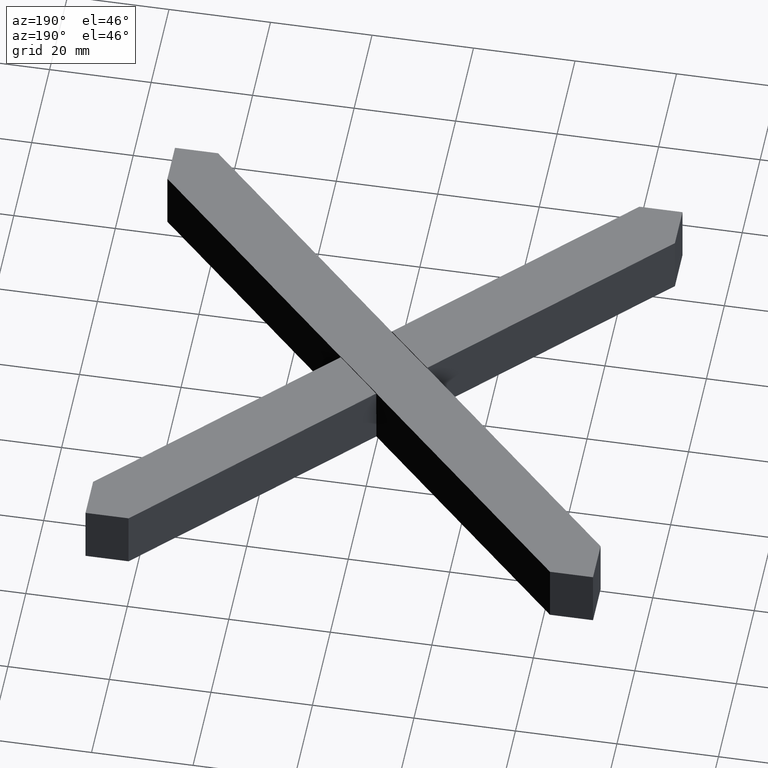
[diagram: clean part render]
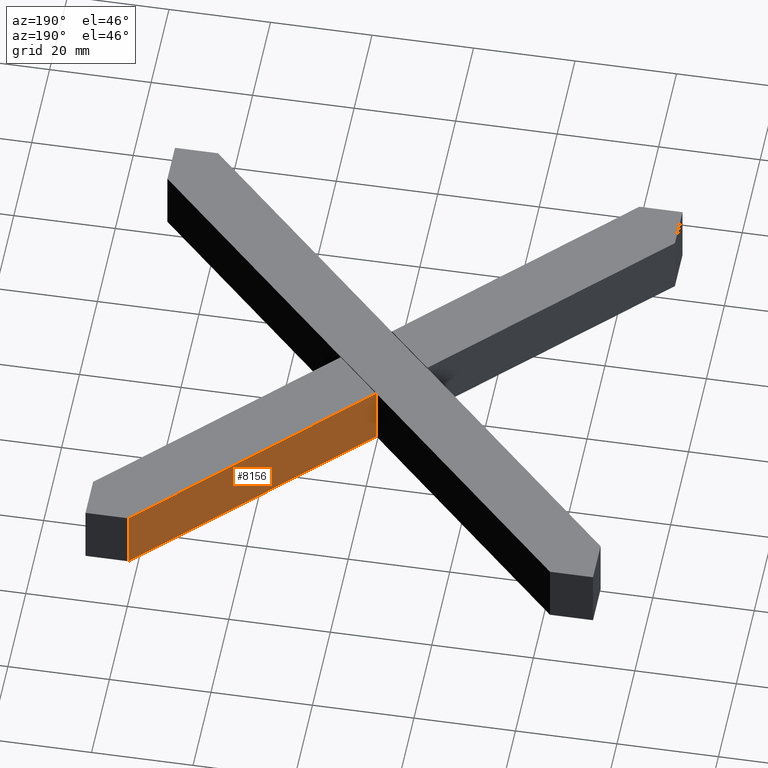
[diagram: same view with one face highlighted and labeled with its STEP entity id]
A machine part, auxiliary view. The second image highlights one B-rep face of the part: STEP entity #8156.
In plain terms, the highlighted planar face has unit normal (0.7071, -0.7071, 0).
Its self-contained STEP definition (entity closure, byte-faithful):
#525 = VERTEX_POINT ( 'NONE', #2630 ) ;
#770 = DIRECTION ( 'NONE',  ( -0.000000000000000000, -0.000000000000000000, -1.000000000000000000 ) ) ;
#1073 = ORIENTED_EDGE ( 'NONE', *, *, #7356, .T. ) ;
#1349 = VECTOR ( 'NONE', #12611, 999.9999999999998863 ) ;
#1473 = DIRECTION ( 'NONE',  ( -0.000000000000000000, -0.000000000000000000, -1.000000000000000000 ) ) ;
#1599 = CARTESIAN_POINT ( 'NONE',  ( -5.509374826798535559E-15, 8.485281374238564212, 0.000000000000000000 ) ) ;
#1704 = CARTESIAN_POINT ( 'NONE',  ( -5.509374826798535559E-15, 8.485281374238564212, 12.00000000000000000 ) ) ;
#2031 = EDGE_CURVE ( 'NONE', #525, #13691, #4371, .T. ) ;
#2630 = CARTESIAN_POINT ( 'NONE',  ( 41.51471862576141092, 50.00000000000000000, 12.00000000000000000 ) ) ;
#2880 = AXIS2_PLACEMENT_3D ( 'NONE', #1704, #7322, #11529 ) ;
#2896 = ORIENTED_EDGE ( 'NONE', *, *, #2031, .T. ) ;
#3033 = CARTESIAN_POINT ( 'NONE',  ( 0.03535533905932217169, 8.520636713297895071, 6.000000000000000000 ) ) ;
#3207 = EDGE_CURVE ( 'NONE', #10664, #9578, #8105, .T. ) ;
#3828 = CARTESIAN_POINT ( 'NONE',  ( 0.03535533905932217169, 8.520636713297895071, 6.000000000000000000 ) ) ;
#3904 = VECTOR ( 'NONE', #14065, 1000.000000000000000 ) ;
#4203 = LINE ( 'NONE', #9727, #6970 ) ;
#4371 = LINE ( 'NONE', #10187, #6281 ) ;
#4884 = DIRECTION ( 'NONE',  ( -0.7071067811865556774, -0.7071067811865392461, -0.000000000000000000 ) ) ;
#5172 = VECTOR ( 'NONE', #770, 1000.000000000000000 ) ;
#5182 = EDGE_LOOP ( 'NONE', ( #10307, #8103, #9387, #2896, #1073, #9221 ) ) ;
#5220 = EDGE_CURVE ( 'NONE', #9865, #7435, #10789, .T. ) ;
#6108 = PLANE ( 'NONE',  #2880 ) ;
#6281 = VECTOR ( 'NONE', #1473, 1000.000000000000000 ) ;
#6476 = LINE ( 'NONE', #8212, #12145 ) ;
#6970 = VECTOR ( 'NONE', #7584, 999.9999999999998863 ) ;
#7322 = DIRECTION ( 'NONE',  ( 0.7071067811865477948, -0.7071067811865473507, 0.000000000000000000 ) ) ;
#7349 = CARTESIAN_POINT ( 'NONE',  ( -5.509374826798535559E-15, 8.485281374238564212, 12.00000000000000000 ) ) ;
#7356 = EDGE_CURVE ( 'NONE', #13691, #9578, #10761, .T. ) ;
#7379 = EDGE_CURVE ( 'NONE', #9865, #10664, #6476, .T. ) ;
#7435 = VERTEX_POINT ( 'NONE', #8538 ) ;
#7506 = FACE_OUTER_BOUND ( 'NONE', #5182, .T. ) ;
#7584 = DIRECTION ( 'NONE',  ( -0.7071067811865473507, -0.7071067811865477948, -0.000000000000000000 ) ) ;
#8103 = ORIENTED_EDGE ( 'NONE', *, *, #5220, .T. ) ;
#8105 = LINE ( 'NONE', #7349, #5172 ) ;
#8156 = ADVANCED_FACE ( 'NONE', ( #7506 ), #6108, .F. ) ;
#8212 = CARTESIAN_POINT ( 'NONE',  ( -0.03535533905933258003, 8.449926035179242234, 6.000000000000000000 ) ) ;
#8277 = CARTESIAN_POINT ( 'NONE',  ( -5.017823179534475209E-15, 8.485281374238560659, 6.000000000000000000 ) ) ;
#8538 = CARTESIAN_POINT ( 'NONE',  ( 0.03535533905932217169, 8.520636713297895071, 12.00000000000000000 ) ) ;
#9221 = ORIENTED_EDGE ( 'NONE', *, *, #3207, .F. ) ;
#9387 = ORIENTED_EDGE ( 'NONE', *, *, #10382, .F. ) ;
#9578 = VERTEX_POINT ( 'NONE', #12013 ) ;
#9727 = CARTESIAN_POINT ( 'NONE',  ( -5.509374826798535559E-15, 8.485281374238564212, 12.00000000000000000 ) ) ;
#9865 = VERTEX_POINT ( 'NONE', #3828 ) ;
#10187 = CARTESIAN_POINT ( 'NONE',  ( 41.51471862576141092, 50.00000000000000000, 12.00000000000000000 ) ) ;
#10307 = ORIENTED_EDGE ( 'NONE', *, *, #7379, .F. ) ;
#10382 = EDGE_CURVE ( 'NONE', #525, #7435, #4203, .T. ) ;
#10664 = VERTEX_POINT ( 'NONE', #8277 ) ;
#10761 = LINE ( 'NONE', #1599, #1349 ) ;
#10789 = LINE ( 'NONE', #3033, #3904 ) ;
#11529 = DIRECTION ( 'NONE',  ( 0.7071067811865473507, 0.7071067811865477948, 0.000000000000000000 ) ) ;
#12013 = CARTESIAN_POINT ( 'NONE',  ( -5.509374826798535559E-15, 8.485281374238564212, 0.000000000000000000 ) ) ;
#12145 = VECTOR ( 'NONE', #4884, 1000.000000000000114 ) ;
#12394 = CARTESIAN_POINT ( 'NONE',  ( 41.51471862576141092, 50.00000000000000000, 0.000000000000000000 ) ) ;
#12611 = DIRECTION ( 'NONE',  ( -0.7071067811865473507, -0.7071067811865477948, -0.000000000000000000 ) ) ;
#13691 = VERTEX_POINT ( 'NONE', #12394 ) ;
#14065 = DIRECTION ( 'NONE',  ( -0.000000000000000000, -0.000000000000000000, 1.000000000000000000 ) ) ;